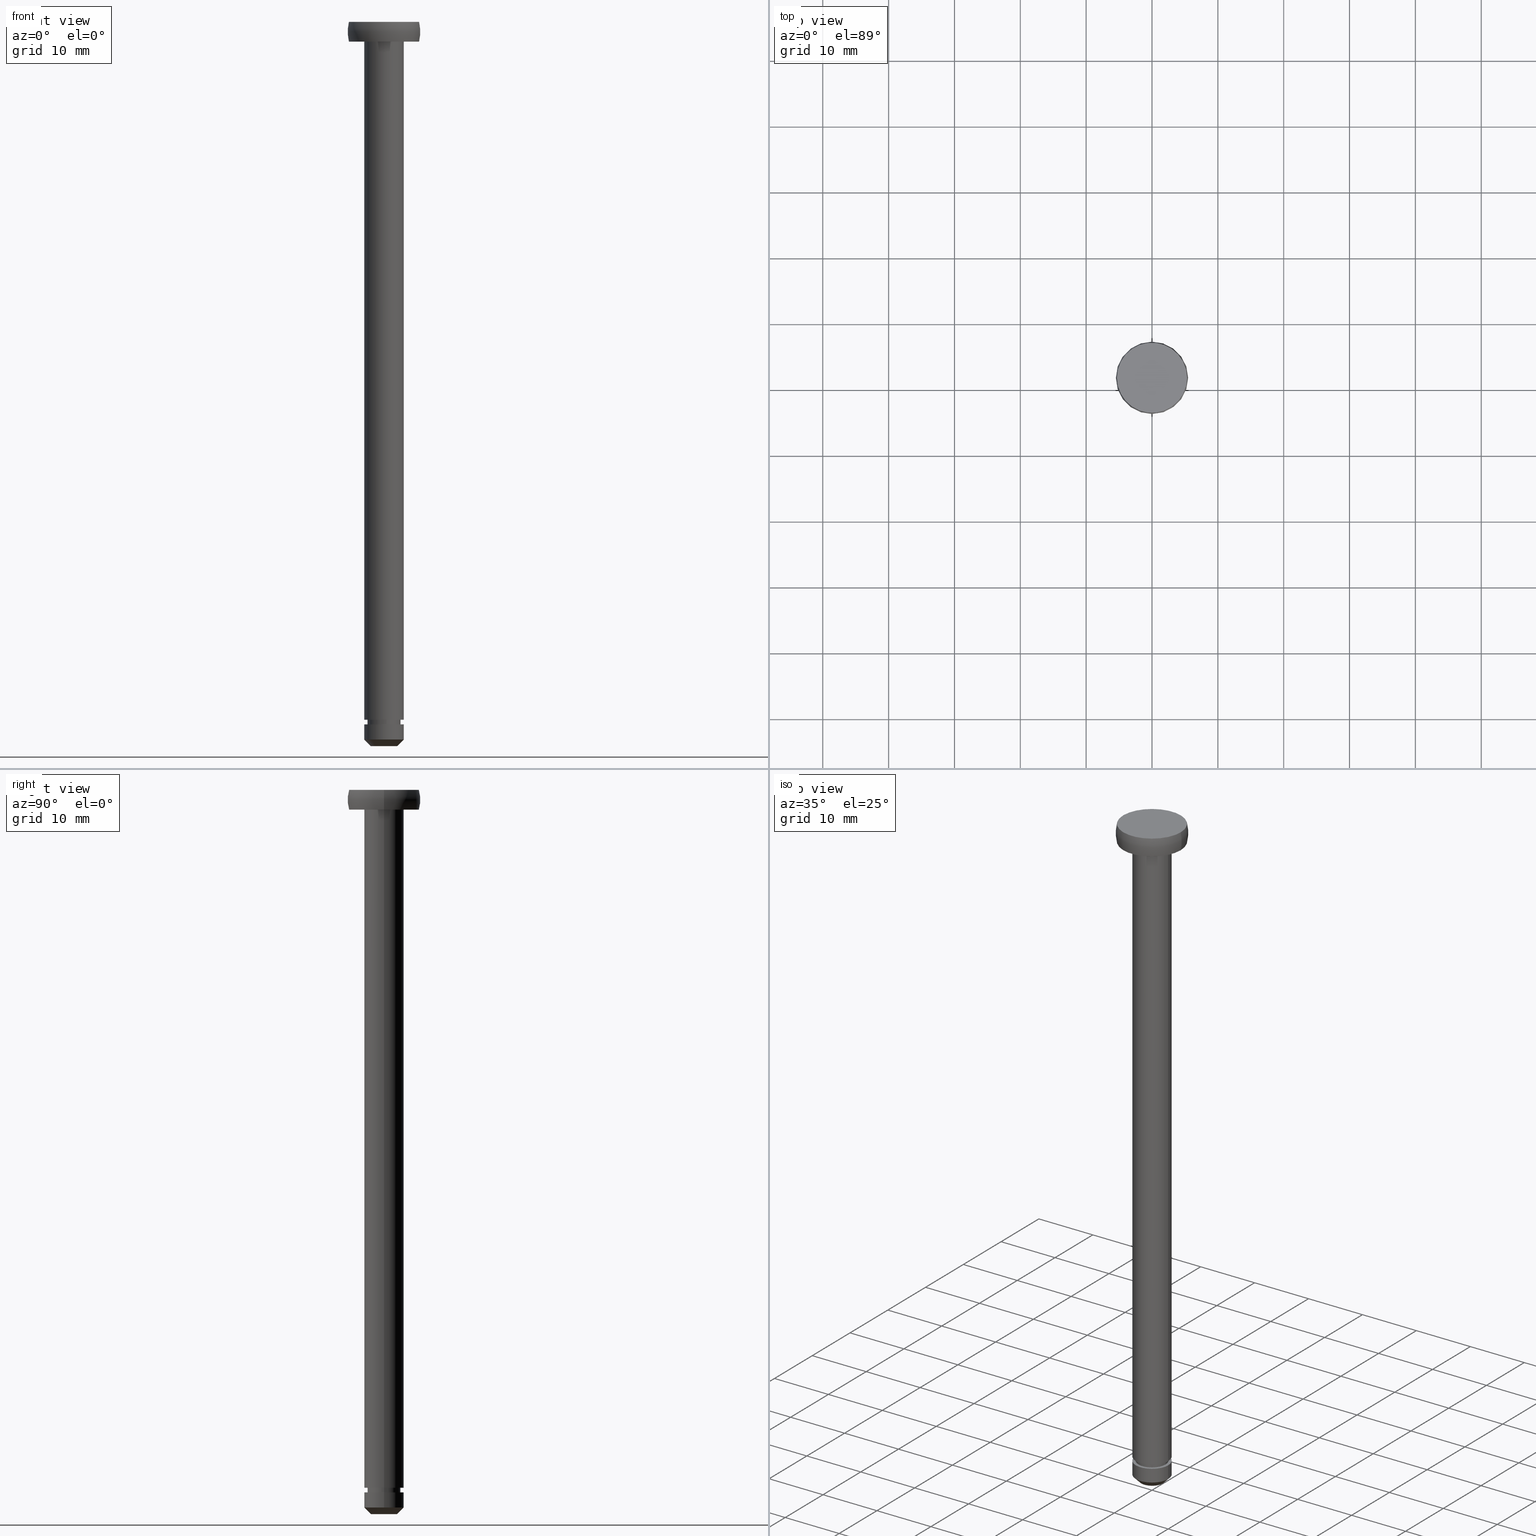
[diagram: canonical four-view strip — front | top / right | iso, engineering-drawing reading convention]
A machine part, canonical four-view strip (front | top / right | iso — engineering-drawing reading convention). The complete STEP part file that produces these views, byte-faithful:
ISO-10303-21;
HEADER;
FILE_DESCRIPTION (( 'STEP AP214' ),
    '1' );
FILE_NAME ('TH_121_6_107.STEP',
    '2016-08-24T01:56:41',
    ( '' ),
    ( '' ),
    'SwSTEP 2.0',
    'SolidWorks 2015',
    '' );
FILE_SCHEMA (( 'AUTOMOTIVE_DESIGN' ));
ENDSEC;

DATA;
#1 = CARTESIAN_POINT ( 'NONE',  ( 0.0000000000000000000, 0.0000000000000000000, -109.0000000180433900 ) ) ;
#2 = AXIS2_PLACEMENT_3D ( 'NONE', #25, #239, #35 ) ;
#3 = APPLICATION_CONTEXT ( 'automotive_design' ) ;
#4 = SHAPE_DEFINITION_REPRESENTATION ( #451, #245 ) ;
#5 = CIRCLE ( 'NONE', #444, 6.642766791230086700 ) ;
#6 = TOROIDAL_SURFACE ( 'NONE', #439, -1.142766791230102100, 6.642766791230087600 ) ;
#7 = DIRECTION ( 'NONE',  ( 1.000000000000000000, 0.0000000000000000000, 0.0000000000000000000 ) ) ;
#8 = ORIENTED_EDGE ( 'NONE', *, *, #219, .T. ) ;
#9 = EDGE_CURVE ( 'NONE', #442, #414, #404, .T. ) ;
#10 = ADVANCED_FACE ( 'NONE', ( #445 ), #446, .T. ) ;
#11 = COLOUR_RGB ( '',0.7921568627450980000, 0.8196078431372548800, 0.9333333333333333500 ) ;
#12 = CARTESIAN_POINT ( 'NONE',  ( 0.0000000000000000000, 0.0000000000000000000, -106.7000000180434000 ) ) ;
#13 = UNCERTAINTY_MEASURE_WITH_UNIT (LENGTH_MEASURE( 1.000000000000000100E-005 ), #193, 'distance_accuracy_value', 'NONE');
#14 = DIRECTION ( 'NONE',  ( -1.000000000000000000, 0.0000000000000000000, 0.0000000000000000000 ) ) ;
#15 = ORIENTED_EDGE ( 'NONE', *, *, #153, .T. ) ;
#16 = DIRECTION ( 'NONE',  ( -1.000000000000000000, 0.0000000000000000000, 0.0000000000000000000 ) ) ;
#17 = FACE_BOUND ( 'NONE', #151, .T. ) ;
#18 =( GEOMETRIC_REPRESENTATION_CONTEXT ( 3 ) GLOBAL_UNCERTAINTY_ASSIGNED_CONTEXT ( ( #13 ) ) GLOBAL_UNIT_ASSIGNED_CONTEXT ( ( #193, #410, #361 ) ) REPRESENTATION_CONTEXT ( 'NONE', 'WORKASPACE' ) );
#19 = ORIENTED_EDGE ( 'NONE', *, *, #58, .T. ) ;
#20 = CARTESIAN_POINT ( 'NONE',  ( 5.328427118366799500, 6.525441214997859000E-016, -6.132507696099412100E-014 ) ) ;
#21 = AXIS2_PLACEMENT_3D ( 'NONE', #1, #349, #382 ) ;
#22 = EDGE_CURVE ( 'NONE', #217, #47, #104, .T. ) ;
#23 = ORIENTED_EDGE ( 'NONE', *, *, #396, .T. ) ;
#24 = CIRCLE ( 'NONE', #134, 3.000000000000000000 ) ;
#25 = CARTESIAN_POINT ( 'NONE',  ( 0.0000000000000000000, 0.0000000000000000000, -6.132507950209293800E-014 ) ) ;
#26 = EDGE_CURVE ( 'NONE', #56, #163, #304, .T. ) ;
#27 = VERTEX_POINT ( 'NONE', #20 ) ;
#28 = CARTESIAN_POINT ( 'NONE',  ( 3.000000000000000900, 0.0000000000000000000, -109.0000000180433900 ) ) ;
#29 = LINE ( 'NONE', #154, #391 ) ;
#30 = DIRECTION ( 'NONE',  ( 0.0000000000000000000, 0.0000000000000000000, -1.000000000000000000 ) ) ;
#31 = AXIS2_PLACEMENT_3D ( 'NONE', #171, #212, #393 ) ;
#32 = PRODUCT_DEFINITION_CONTEXT ( 'detailed design', #69, 'design' ) ;
#33 = EDGE_CURVE ( 'NONE', #27, #350, #208, .T. ) ;
#34 = VECTOR ( 'NONE', #148, 1000.000000000000000 ) ;
#35 = DIRECTION ( 'NONE',  ( -1.000000000000000000, 0.0000000000000000000, 0.0000000000000000000 ) ) ;
#36 = APPLICATION_PROTOCOL_DEFINITION ( 'draft international standard', 'automotive_design', 1998, #113 ) ;
#37 = ORIENTED_EDGE ( 'NONE', *, *, #230, .T. ) ;
#38 = ORIENTED_EDGE ( 'NONE', *, *, #72, .F. ) ;
#39 = CARTESIAN_POINT ( 'NONE',  ( 0.0000000000000000000, 0.0000000000000000000, -106.7000000180434000 ) ) ;
#40 = CARTESIAN_POINT ( 'NONE',  ( 0.0000000000000000000, 0.0000000000000000000, 0.0000000000000000000 ) ) ;
#41 = EDGE_CURVE ( 'NONE', #264, #242, #71, .T. ) ;
#42 = CYLINDRICAL_SURFACE ( 'NONE', #246, 3.000000000000000400 ) ;
#43 = DIRECTION ( 'NONE',  ( 1.000000000000000000, 0.0000000000000000000, 0.0000000000000000000 ) ) ;
#44 = PRODUCT_DEFINITION_SHAPE ( 'NONE', 'NONE',  #469 ) ;
#45 = AXIS2_PLACEMENT_3D ( 'NONE', #88, #229, #7 ) ;
#46 = AXIS2_PLACEMENT_3D ( 'NONE', #218, #133, #460 ) ;
#47 = VERTEX_POINT ( 'NONE', #362 ) ;
#48 = ADVANCED_FACE ( 'NONE', ( #265, #165 ), #458, .T. ) ;
#49 = VERTEX_POINT ( 'NONE', #213 ) ;
#50 = VECTOR ( 'NONE', #123, 1000.000000000000000 ) ;
#51 = AXIS2_PLACEMENT_3D ( 'NONE', #346, #183, #175 ) ;
#52 = DIRECTION ( 'NONE',  ( 0.0000000000000000000, 0.0000000000000000000, -1.000000000000000000 ) ) ;
#53 = COLOUR_RGB ( '',0.7921568627450980000, 0.8196078431372548800, 0.9333333333333333500 ) ;
#54 = EDGE_CURVE ( 'NONE', #240, #243, #359, .T. ) ;
#55 = ORIENTED_EDGE ( 'NONE', *, *, #136, .T. ) ;
#56 = VERTEX_POINT ( 'NONE', #179 ) ;
#57 = DIRECTION ( 'NONE',  ( 0.0000000000000000000, 0.0000000000000000000, -1.000000000000000000 ) ) ;
#58 = EDGE_CURVE ( 'NONE', #459, #457, #260, .T. ) ;
#59 = CARTESIAN_POINT ( 'NONE',  ( -5.328427118366800400, 0.0000000000000000000, -3.000000018043550200 ) ) ;
#60 = EDGE_LOOP ( 'NONE', ( #206, #159, #312, #38 ) ) ;
#61 = DIRECTION ( 'NONE',  ( -1.000000000000000000, 0.0000000000000000000, -0.0000000000000000000 ) ) ;
#62 = SHAPE_REPRESENTATION ( 'shaft', ( #65 ), #18 ) ;
#63 = PRESENTATION_STYLE_ASSIGNMENT (( #356 ) ) ;
#64 = DIRECTION ( 'NONE',  ( -1.000000000000000000, 0.0000000000000000000, 0.0000000000000000000 ) ) ;
#65 = AXIS2_PLACEMENT_3D ( 'NONE', #235, #190, #189 ) ;
#66 = CARTESIAN_POINT ( 'NONE',  ( -3.000000000000000000, 0.0000000000000000000, -106.7000000180434000 ) ) ;
#67 = CARTESIAN_POINT ( 'NONE',  ( 2.000000000000000000, 0.0000000000000000000, -110.0000000180435900 ) ) ;
#68 = ORIENTED_EDGE ( 'NONE', *, *, #266, .T. ) ;
#69 = APPLICATION_CONTEXT ( 'automotive_design' ) ;
#70 = AXIS2_PLACEMENT_3D ( 'NONE', #288, #52, #395 ) ;
#71 = CIRCLE ( 'NONE', #454, 5.328427118366800400 ) ;
#72 = EDGE_CURVE ( 'NONE', #442, #108, #343, .T. ) ;
#73 = CARTESIAN_POINT ( 'NONE',  ( 3.000000000000000400, 3.673940397442060400E-016, -6.132507950209293800E-014 ) ) ;
#74 = ORIENTED_EDGE ( 'NONE', *, *, #33, .T. ) ;
#75 = DIRECTION ( 'NONE',  ( -1.000000000000000000, 0.0000000000000000000, 0.0000000000000000000 ) ) ;
#76 = CYLINDRICAL_SURFACE ( 'NONE', #2, 2.500000000000000000 ) ;
#77 =( NAMED_UNIT ( * ) SI_UNIT ( $, .STERADIAN. ) SOLID_ANGLE_UNIT ( ) );
#78 = PRODUCT_CONTEXT ( 'NONE', #3, 'mechanical' ) ;
#79 = CIRCLE ( 'NONE', #21, 3.000000000000000900 ) ;
#80 = DIRECTION ( 'NONE',  ( -1.000000000000000000, -1.224646799147353200E-016, 0.0000000000000000000 ) ) ;
#81 = CIRCLE ( 'NONE', #224, 3.000000000000000000 ) ;
#82 = SHAPE_REPRESENTATION_RELATIONSHIP ( 'NONE' , 'NONE' ,  #62, #255 ) ;
#83 = CARTESIAN_POINT ( 'NONE',  ( 2.500000000000000000, 3.061616997868383100E-016, -106.0000000180433900 ) ) ;
#84 = AXIS2_PLACEMENT_3D ( 'NONE', #400, #180, #103 ) ;
#85 = ORIENTED_EDGE ( 'NONE', *, *, #463, .F. ) ;
#86 = EDGE_LOOP ( 'NONE', ( #125, #37, #435, #358 ) ) ;
#87 = ORIENTED_EDGE ( 'NONE', *, *, #100, .T. ) ;
#88 = CARTESIAN_POINT ( 'NONE',  ( 3.000000000000000000, 0.0000000000000000000, -106.7000000180434000 ) ) ;
#89 = ADVANCED_FACE ( 'NONE', ( #327 ), #378, .T. ) ;
#90 = ORIENTED_EDGE ( 'NONE', *, *, #54, .F. ) ;
#91 = CARTESIAN_POINT ( 'NONE',  ( 0.0000000000000000000, 0.0000000000000000000, -3.000000018043550200 ) ) ;
#92 = FILL_AREA_STYLE_COLOUR ( '', #11 ) ;
#93 = STYLED_ITEM ( 'NONE', ( #334 ), #255 ) ;
#94 = ORIENTED_EDGE ( 'NONE', *, *, #162, .F. ) ;
#95 = DIRECTION ( 'NONE',  ( -0.0000000000000000000, -0.0000000000000000000, 1.000000000000000000 ) ) ;
#96 = EDGE_LOOP ( 'NONE', ( #90, #210 ) ) ;
#97 = SURFACE_SIDE_STYLE ('',( #204 ) ) ;
#98 = AXIS2_PLACEMENT_3D ( 'NONE', #203, #253, #143 ) ;
#99 = CARTESIAN_POINT ( 'NONE',  ( 3.000000000000000000, 3.673940397442059900E-016, -106.0000000180433900 ) ) ;
#100 = EDGE_CURVE ( 'NONE', #243, #240, #24, .T. ) ;
#101 = VECTOR ( 'NONE', #109, 1000.000000000000100 ) ;
#102 = DIRECTION ( 'NONE',  ( 0.0000000000000000000, 0.0000000000000000000, -1.000000000000000000 ) ) ;
#103 = DIRECTION ( 'NONE',  ( -1.000000000000000000, 0.0000000000000000000, 0.0000000000000000000 ) ) ;
#104 = CIRCLE ( 'NONE', #380, 2.000000000000000000 ) ;
#105 = VERTEX_POINT ( 'NONE', #99 ) ;
#106 = CIRCLE ( 'NONE', #316, 6.642766791230087600 ) ;
#107 = AXIS2_PLACEMENT_3D ( 'NONE', #111, #95, #244 ) ;
#108 = VERTEX_POINT ( 'NONE', #418 ) ;
#109 = DIRECTION ( 'NONE',  ( 0.7071067811864788500, 0.0000000000000000000, 0.7071067811866163000 ) ) ;
#110 = VECTOR ( 'NONE', #102, 1000.000000000000000 ) ;
#111 = CARTESIAN_POINT ( 'NONE',  ( 0.0000000000000000000, 0.0000000000000000000, -110.0000000180435900 ) ) ;
#112 = DIRECTION ( 'NONE',  ( -1.000000000000000000, 0.0000000000000000000, 0.0000000000000000000 ) ) ;
#113 = APPLICATION_CONTEXT ( 'automotive_design' ) ;
#114 = ORIENTED_EDGE ( 'NONE', *, *, #22, .T. ) ;
#115 =( NAMED_UNIT ( * ) PLANE_ANGLE_UNIT ( ) SI_UNIT ( $, .RADIAN. ) );
#116 = PLANE ( 'NONE',  #45 ) ;
#117 = ORIENTED_EDGE ( 'NONE', *, *, #41, .F. ) ;
#118 = CYLINDRICAL_SURFACE ( 'NONE', #366, 3.000000000000000000 ) ;
#119 = PRODUCT ( 'TH_121_6_107', 'TH_121_6_107', '', ( #78 ) ) ;
#120 = PRESENTATION_LAYER_ASSIGNMENT (  '', '', ( #93 ) ) ;
#121 = EDGE_LOOP ( 'NONE', ( #19, #357, #371, #156 ) ) ;
#122 = UNCERTAINTY_MEASURE_WITH_UNIT (LENGTH_MEASURE( 1.000000000000000100E-005 ), #298, 'distance_accuracy_value', 'NONE');
#123 = DIRECTION ( 'NONE',  ( 0.0000000000000000000, 0.0000000000000000000, -1.000000000000000000 ) ) ;
#124 = PRODUCT_DEFINITION_FORMATION_WITH_SPECIFIED_SOURCE ( 'ANY', '', #452, .NOT_KNOWN. ) ;
#125 = ORIENTED_EDGE ( 'NONE', *, *, #130, .F. ) ;
#126 = ADVANCED_FACE ( 'NONE', ( #303 ), #209, .T. ) ;
#127 = CARTESIAN_POINT ( 'NONE',  ( -3.000000000000000000, 0.0000000000000000000, -3.000000018043495100 ) ) ;
#128 = ORIENTED_EDGE ( 'NONE', *, *, #463, .T. ) ;
#129 = CARTESIAN_POINT ( 'NONE',  ( 3.000000000000000000, 3.673940397442059900E-016, -6.132507950209293800E-014 ) ) ;
#130 = EDGE_CURVE ( 'NONE', #457, #49, #176, .T. ) ;
#131 = VECTOR ( 'NONE', #295, 1000.000000000000000 ) ;
#132 = DIRECTION ( 'NONE',  ( 0.0000000000000000000, 0.0000000000000000000, -1.000000000000000000 ) ) ;
#133 = DIRECTION ( 'NONE',  ( 0.0000000000000000000, 0.0000000000000000000, -1.000000000000000000 ) ) ;
#134 = AXIS2_PLACEMENT_3D ( 'NONE', #39, #280, #169 ) ;
#135 = PLANE ( 'NONE',  #299 ) ;
#136 = EDGE_CURVE ( 'NONE', #49, #468, #214, .T. ) ;
#137 = DIRECTION ( 'NONE',  ( 0.0000000000000000000, 0.0000000000000000000, -1.000000000000000000 ) ) ;
#138 = ORIENTED_EDGE ( 'NONE', *, *, #311, .F. ) ;
#139 = EDGE_LOOP ( 'NONE', ( #381, #55 ) ) ;
#140 = DIRECTION ( 'NONE',  ( -1.000000000000000000, 0.0000000000000000000, 0.0000000000000000000 ) ) ;
#141 = VECTOR ( 'NONE', #216, 1000.000000000000000 ) ;
#142 = CIRCLE ( 'NONE', #221, 2.000000000000000000 ) ;
#143 = DIRECTION ( 'NONE',  ( 1.000000000000000000, 0.0000000000000000000, 0.0000000000000000000 ) ) ;
#144 = DIRECTION ( 'NONE',  ( 0.0000000000000000000, 0.0000000000000000000, -1.000000000000000000 ) ) ;
#145 = MECHANICAL_DESIGN_GEOMETRIC_PRESENTATION_REPRESENTATION (  '', ( #93 ), #161 ) ;
#146 = CARTESIAN_POINT ( 'NONE',  ( -3.000000000000000000, 0.0000000000000000000, -6.132507950209293800E-014 ) ) ;
#147 = CARTESIAN_POINT ( 'NONE',  ( 0.0000000000000000000, 0.0000000000000000000, -6.132507950209293800E-014 ) ) ;
#148 = DIRECTION ( 'NONE',  ( 0.0000000000000000000, 0.0000000000000000000, -1.000000000000000000 ) ) ;
#149 = ORIENTED_EDGE ( 'NONE', *, *, #54, .T. ) ;
#150 = EDGE_LOOP ( 'NONE', ( #412, #194 ) ) ;
#151 = EDGE_LOOP ( 'NONE', ( #252, #370 ) ) ;
#152 = FILL_AREA_STYLE_COLOUR ( '', #53 ) ;
#153 = EDGE_CURVE ( 'NONE', #105, #108, #81, .T. ) ;
#154 = CARTESIAN_POINT ( 'NONE',  ( -2.500000000000000000, 0.0000000000000000000, -6.132507950209293800E-014 ) ) ;
#155 = CARTESIAN_POINT ( 'NONE',  ( 0.0000000000000000000, 0.0000000000000000000, -1.500000009021820000 ) ) ;
#156 = ORIENTED_EDGE ( 'NONE', *, *, #388, .F. ) ;
#157 = ADVANCED_FACE ( 'NONE', ( #384 ), #135, .T. ) ;
#158 = EDGE_CURVE ( 'NONE', #108, #105, #270, .T. ) ;
#159 = ORIENTED_EDGE ( 'NONE', *, *, #339, .T. ) ;
#160 = FILL_AREA_STYLE ('',( #152 ) ) ;
#161 =( GEOMETRIC_REPRESENTATION_CONTEXT ( 3 ) GLOBAL_UNCERTAINTY_ASSIGNED_CONTEXT ( ( #313 ) ) GLOBAL_UNIT_ASSIGNED_CONTEXT ( ( #262, #115, #399 ) ) REPRESENTATION_CONTEXT ( 'NONE', 'WORKASPACE' ) );
#162 = EDGE_CURVE ( 'NONE', #217, #163, #287, .T. ) ;
#163 = VERTEX_POINT ( 'NONE', #28 ) ;
#164 = FILL_AREA_STYLE ('',( #92 ) ) ;
#165 = FACE_BOUND ( 'NONE', #150, .T. ) ;
#166 = UNCERTAINTY_MEASURE_WITH_UNIT (LENGTH_MEASURE( 1.000000000000000100E-005 ), #215, 'distance_accuracy_value', 'NONE');
#167 = EDGE_LOOP ( 'NONE', ( #178, #15 ) ) ;
#168 = DIRECTION ( 'NONE',  ( 0.0000000000000000000, 0.0000000000000000000, -1.000000000000000000 ) ) ;
#169 = DIRECTION ( 'NONE',  ( -1.000000000000000000, 0.0000000000000000000, 0.0000000000000000000 ) ) ;
#170 = AXIS2_PLACEMENT_3D ( 'NONE', #91, #222, #14 ) ;
#171 = CARTESIAN_POINT ( 'NONE',  ( 0.0000000000000000000, 0.0000000000000000000, -106.7000000180434000 ) ) ;
#172 = FACE_OUTER_BOUND ( 'NONE', #401, .T. ) ;
#173 = CARTESIAN_POINT ( 'NONE',  ( 1.142766791230102100, 0.0000000000000000000, -1.500000009021820000 ) ) ;
#174 = VECTOR ( 'NONE', #365, 1000.000000000000100 ) ;
#175 = DIRECTION ( 'NONE',  ( -1.000000000000000000, 0.0000000000000000000, -0.0000000000000000000 ) ) ;
#176 = LINE ( 'NONE', #455, #110 ) ;
#177 = AXIS2_PLACEMENT_3D ( 'NONE', #320, #199, #290 ) ;
#178 = ORIENTED_EDGE ( 'NONE', *, *, #158, .T. ) ;
#179 = CARTESIAN_POINT ( 'NONE',  ( -3.000000000000000900, 3.673940397442060900E-016, -109.0000000180433900 ) ) ;
#180 = DIRECTION ( 'NONE',  ( 0.0000000000000000000, 0.0000000000000000000, -1.000000000000000000 ) ) ;
#181 = FACE_OUTER_BOUND ( 'NONE', #301, .T. ) ;
#182 = DIRECTION ( 'NONE',  ( 0.0000000000000000000, 0.0000000000000000000, -1.000000000000000000 ) ) ;
#183 = DIRECTION ( 'NONE',  ( 0.0000000000000000000, 0.0000000000000000000, -1.000000000000000000 ) ) ;
#184 = DIRECTION ( 'NONE',  ( -1.000000000000000000, 0.0000000000000000000, 0.0000000000000000000 ) ) ;
#185 = MANIFOLD_SOLID_BREP ( '��]1', #275 ) ;
#186 = FACE_OUTER_BOUND ( 'NONE', #121, .T. ) ;
#187 = CARTESIAN_POINT ( 'NONE',  ( 2.500000000000000000, 0.0000000000000000000, -106.0000000180433900 ) ) ;
#188 = FACE_BOUND ( 'NONE', #139, .T. ) ;
#189 = DIRECTION ( 'NONE',  ( 1.000000000000000000, 0.0000000000000000000, 0.0000000000000000000 ) ) ;
#190 = DIRECTION ( 'NONE',  ( 0.0000000000000000000, 0.0000000000000000000, 1.000000000000000000 ) ) ;
#191 = ADVANCED_FACE ( 'NONE', ( #186 ), #76, .T. ) ;
#192 = EDGE_CURVE ( 'NONE', #350, #242, #5, .T. ) ;
#193 =( LENGTH_UNIT ( ) NAMED_UNIT ( * ) SI_UNIT ( .MILLI., .METRE. ) );
#194 = ORIENTED_EDGE ( 'NONE', *, *, #219, .F. ) ;
#195 = AXIS2_PLACEMENT_3D ( 'NONE', #286, #168, #184 ) ;
#196 = CARTESIAN_POINT ( 'NONE',  ( -1.142766791230102100, -1.399485693051835900E-016, -1.500000009021820000 ) ) ;
#197 = PRODUCT_DEFINITION_SHAPE ( 'NONE', 'NONE',  #333 ) ;
#198 = FACE_OUTER_BOUND ( 'NONE', #297, .T. ) ;
#199 = DIRECTION ( 'NONE',  ( 0.0000000000000000000, 0.0000000000000000000, -1.000000000000000000 ) ) ;
#200 = ORIENTED_EDGE ( 'NONE', *, *, #26, .T. ) ;
#201 = AXIS2_PLACEMENT_3D ( 'NONE', #284, #465, #61 ) ;
#202 = DIRECTION ( 'NONE',  ( 0.0000000000000000000, 0.0000000000000000000, -1.000000000000000000 ) ) ;
#203 = CARTESIAN_POINT ( 'NONE',  ( 0.0000000000000000000, 0.0000000000000000000, -110.0000000180435900 ) ) ;
#204 = SURFACE_STYLE_FILL_AREA ( #164 ) ;
#205 = CARTESIAN_POINT ( 'NONE',  ( 3.000000000000000000, 3.673940397442060400E-016, -106.7000000180434000 ) ) ;
#206 = ORIENTED_EDGE ( 'NONE', *, *, #9, .T. ) ;
#207 = DIRECTION ( 'NONE',  ( 0.0000000000000000000, 0.0000000000000000000, -1.000000000000000000 ) ) ;
#208 = CIRCLE ( 'NONE', #429, 5.328427118366799500 ) ;
#209 = PLANE ( 'NONE',  #201 ) ;
#210 = ORIENTED_EDGE ( 'NONE', *, *, #100, .F. ) ;
#211 = LINE ( 'NONE', #73, #50 ) ;
#212 = DIRECTION ( 'NONE',  ( 0.0000000000000000000, 0.0000000000000000000, -1.000000000000000000 ) ) ;
#213 = CARTESIAN_POINT ( 'NONE',  ( 2.500000000000000000, 3.061616997868383100E-016, -106.7000000180434000 ) ) ;
#214 = CIRCLE ( 'NONE', #177, 2.500000000000000000 ) ;
#215 =( LENGTH_UNIT ( ) NAMED_UNIT ( * ) SI_UNIT ( .MILLI., .METRE. ) );
#216 = DIRECTION ( 'NONE',  ( 0.0000000000000000000, 0.0000000000000000000, -1.000000000000000000 ) ) ;
#217 = VERTEX_POINT ( 'NONE', #67 ) ;
#218 = CARTESIAN_POINT ( 'NONE',  ( 0.0000000000000000000, 0.0000000000000000000, -106.0000000180433900 ) ) ;
#219 = EDGE_CURVE ( 'NONE', #414, #442, #389, .T. ) ;
#220 = LINE ( 'NONE', #129, #131 ) ;
#221 = AXIS2_PLACEMENT_3D ( 'NONE', #450, #132, #447 ) ;
#222 = DIRECTION ( 'NONE',  ( 0.0000000000000000000, 0.0000000000000000000, -1.000000000000000000 ) ) ;
#223 = DIRECTION ( 'NONE',  ( 0.0000000000000000000, 0.0000000000000000000, -1.000000000000000000 ) ) ;
#224 = AXIS2_PLACEMENT_3D ( 'NONE', #424, #385, #466 ) ;
#225 = CARTESIAN_POINT ( 'NONE',  ( 0.0000000000000000000, 0.0000000000000000000, 0.0000000000000000000 ) ) ;
#226 = ORIENTED_EDGE ( 'NONE', *, *, #236, .T. ) ;
#227 = ORIENTED_EDGE ( 'NONE', *, *, #342, .T. ) ;
#228 = ADVANCED_FACE ( 'NONE', ( #314 ), #376, .T. ) ;
#229 = DIRECTION ( 'NONE',  ( 0.0000000000000000000, -0.0000000000000000000, 1.000000000000000000 ) ) ;
#230 = EDGE_CURVE ( 'NONE', #457, #459, #369, .T. ) ;
#231 = ORIENTED_EDGE ( 'NONE', *, *, #387, .F. ) ;
#232 = APPLICATION_PROTOCOL_DEFINITION ( 'draft international standard', 'automotive_design', 1998, #3 ) ;
#233 = TOROIDAL_SURFACE ( 'NONE', #294, -1.142766791230102100, 6.642766791230087600 ) ;
#234 = DIRECTION ( 'NONE',  ( 0.0000000000000000000, 0.0000000000000000000, -1.000000000000000000 ) ) ;
#235 = CARTESIAN_POINT ( 'NONE',  ( 0.0000000000000000000, 0.0000000000000000000, 0.0000000000000000000 ) ) ;
#236 = EDGE_CURVE ( 'NONE', #163, #56, #79, .T. ) ;
#237 = CARTESIAN_POINT ( 'NONE',  ( 0.0000000000000000000, 0.0000000000000000000, -109.0000000180433900 ) ) ;
#238 = AXIS2_PLACEMENT_3D ( 'NONE', #363, #345, #443 ) ;
#239 = DIRECTION ( 'NONE',  ( 0.0000000000000000000, 0.0000000000000000000, -1.000000000000000000 ) ) ;
#240 = VERTEX_POINT ( 'NONE', #66 ) ;
#241 = DIRECTION ( 'NONE',  ( 0.0000000000000000000, 0.0000000000000000000, -1.000000000000000000 ) ) ;
#242 = VERTEX_POINT ( 'NONE', #59 ) ;
#243 = VERTEX_POINT ( 'NONE', #205 ) ;
#244 = DIRECTION ( 'NONE',  ( 1.000000000000000000, 0.0000000000000000000, 0.0000000000000000000 ) ) ;
#245 = SHAPE_REPRESENTATION ( 'TH_121_6_107', ( #309, #261 ), #283 ) ;
#246 = AXIS2_PLACEMENT_3D ( 'NONE', #147, #57, #467 ) ;
#247 = CARTESIAN_POINT ( 'NONE',  ( 0.0000000000000000000, 0.0000000000000000000, -3.000000018043550200 ) ) ;
#248 = ADVANCED_FACE ( 'NONE', ( #340 ), #368, .T. ) ;
#249 = CARTESIAN_POINT ( 'NONE',  ( 0.0000000000000000000, 0.0000000000000000000, -110.0000000180435900 ) ) ;
#250 = APPLICATION_CONTEXT ( 'automotive_design' ) ;
#251 = EDGE_LOOP ( 'NONE', ( #423, #321 ) ) ;
#252 = ORIENTED_EDGE ( 'NONE', *, *, #58, .F. ) ;
#253 = DIRECTION ( 'NONE',  ( -0.0000000000000000000, -0.0000000000000000000, 1.000000000000000000 ) ) ;
#254 =( REPRESENTATION_RELATIONSHIP ('NONE','NONE', #245, #62 ) REPRESENTATION_RELATIONSHIP_WITH_TRANSFORMATION ( #278 )SHAPE_REPRESENTATION_RELATIONSHIP( ) );
#255 = ADVANCED_BREP_SHAPE_REPRESENTATION ( '', ( #185, #65 ), #18 ) ;
#256 = CARTESIAN_POINT ( 'NONE',  ( 0.0000000000000000000, 0.0000000000000000000, -6.132507950209293800E-014 ) ) ;
#257 = ORIENTED_EDGE ( 'NONE', *, *, #22, .F. ) ;
#258 = DIRECTION ( 'NONE',  ( -1.000000000000000000, 0.0000000000000000000, 0.0000000000000000000 ) ) ;
#259 = DIRECTION ( 'NONE',  ( -1.000000000000000000, 0.0000000000000000000, 0.0000000000000000000 ) ) ;
#260 = CIRCLE ( 'NONE', #84, 2.500000000000000000 ) ;
#261 = AXIS2_PLACEMENT_3D ( 'NONE', #40, #344, #324 ) ;
#262 =( LENGTH_UNIT ( ) NAMED_UNIT ( * ) SI_UNIT ( .MILLI., .METRE. ) );
#263 = EDGE_LOOP ( 'NONE', ( #85, #257, #273, #226 ) ) ;
#264 = VERTEX_POINT ( 'NONE', #355 ) ;
#265 = FACE_OUTER_BOUND ( 'NONE', #251, .T. ) ;
#266 = EDGE_CURVE ( 'NONE', #240, #56, #440, .T. ) ;
#267 = ADVANCED_FACE ( 'NONE', ( #181 ), #428, .T. ) ;
#268 = AXIS2_PLACEMENT_3D ( 'NONE', #291, #269, #258 ) ;
#269 = DIRECTION ( 'NONE',  ( 0.0000000000000000000, 0.0000000000000000000, -1.000000000000000000 ) ) ;
#270 = CIRCLE ( 'NONE', #274, 3.000000000000000000 ) ;
#271 = LINE ( 'NONE', #416, #174 ) ;
#272 = CARTESIAN_POINT ( 'NONE',  ( 0.0000000000000000000, 0.0000000000000000000, -3.000000018043495100 ) ) ;
#273 = ORIENTED_EDGE ( 'NONE', *, *, #162, .T. ) ;
#274 = AXIS2_PLACEMENT_3D ( 'NONE', #422, #144, #140 ) ;
#275 = CLOSED_SHELL ( 'NONE', ( #10, #191, #300, #89, #413, #337, #157, #126, #248, #267, #448, #228, #394, #375, #48 ) ) ;
#276 = DIRECTION ( 'NONE',  ( 0.0000000000000000000, 0.0000000000000000000, -1.000000000000000000 ) ) ;
#277 = CARTESIAN_POINT ( 'NONE',  ( 2.000000000000000000, 0.0000000000000000000, -110.0000000180435900 ) ) ;
#278 = ITEM_DEFINED_TRANSFORMATION ( 'NONE', 'NONE', #261,  #65 ) ;
#279 = DIRECTION ( 'NONE',  ( 0.0000000000000000000, 0.0000000000000000000, -1.000000000000000000 ) ) ;
#280 = DIRECTION ( 'NONE',  ( 0.0000000000000000000, 0.0000000000000000000, -1.000000000000000000 ) ) ;
#281 = DIRECTION ( 'NONE',  ( -1.000000000000000000, 0.0000000000000000000, 0.0000000000000000000 ) ) ;
#282 = FACE_OUTER_BOUND ( 'NONE', #96, .T. ) ;
#283 =( GEOMETRIC_REPRESENTATION_CONTEXT ( 3 ) GLOBAL_UNCERTAINTY_ASSIGNED_CONTEXT ( ( #122 ) ) GLOBAL_UNIT_ASSIGNED_CONTEXT ( ( #298, #293, #289 ) ) REPRESENTATION_CONTEXT ( 'NONE', 'WORKASPACE' ) );
#284 = CARTESIAN_POINT ( 'NONE',  ( 0.0000000000000000000, 0.0000000000000000000, -110.0000000180435900 ) ) ;
#285 = ORIENTED_EDGE ( 'NONE', *, *, #387, .T. ) ;
#286 = CARTESIAN_POINT ( 'NONE',  ( 0.0000000000000000000, 0.0000000000000000000, -6.132507950209293800E-014 ) ) ;
#287 = LINE ( 'NONE', #277, #101 ) ;
#288 = CARTESIAN_POINT ( 'NONE',  ( 0.0000000000000000000, 0.0000000000000000000, -6.132507950209293800E-014 ) ) ;
#289 =( NAMED_UNIT ( * ) SI_UNIT ( $, .STERADIAN. ) SOLID_ANGLE_UNIT ( ) );
#290 = DIRECTION ( 'NONE',  ( -1.000000000000000000, 0.0000000000000000000, 0.0000000000000000000 ) ) ;
#291 = CARTESIAN_POINT ( 'NONE',  ( 0.0000000000000000000, 0.0000000000000000000, -6.132507696099412100E-014 ) ) ;
#292 = ORIENTED_EDGE ( 'NONE', *, *, #339, .F. ) ;
#293 =( NAMED_UNIT ( * ) PLANE_ANGLE_UNIT ( ) SI_UNIT ( $, .RADIAN. ) );
#294 = AXIS2_PLACEMENT_3D ( 'NONE', #402, #322, #436 ) ;
#295 = DIRECTION ( 'NONE',  ( 0.0000000000000000000, 0.0000000000000000000, -1.000000000000000000 ) ) ;
#296 = APPLICATION_PROTOCOL_DEFINITION ( 'draft international standard', 'automotive_design', 1998, #69 ) ;
#297 = EDGE_LOOP ( 'NONE', ( #227, #23, #138, #348 ) ) ;
#298 =( LENGTH_UNIT ( ) NAMED_UNIT ( * ) SI_UNIT ( .MILLI., .METRE. ) );
#299 = AXIS2_PLACEMENT_3D ( 'NONE', #318, #461, #420 ) ;
#300 = ADVANCED_FACE ( 'NONE', ( #172 ), #42, .T. ) ;
#301 = EDGE_LOOP ( 'NONE', ( #231, #87, #68, #326 ) ) ;
#302 = EDGE_CURVE ( 'NONE', #47, #217, #142, .T. ) ;
#303 = FACE_OUTER_BOUND ( 'NONE', #425, .T. ) ;
#304 = CIRCLE ( 'NONE', #354, 3.000000000000000900 ) ;
#305 = EDGE_LOOP ( 'NONE', ( #421, #449 ) ) ;
#306 = DIRECTION ( 'NONE',  ( -1.000000000000000000, 0.0000000000000000000, 0.0000000000000000000 ) ) ;
#307 = FACE_OUTER_BOUND ( 'NONE', #167, .T. ) ;
#308 = DIRECTION ( 'NONE',  ( -1.000000000000000000, 0.0000000000000000000, 0.0000000000000000000 ) ) ;
#309 = AXIS2_PLACEMENT_3D ( 'NONE', #225, #377, #43 ) ;
#310 = ORIENTED_EDGE ( 'NONE', *, *, #26, .F. ) ;
#311 = EDGE_CURVE ( 'NONE', #242, #264, #329, .T. ) ;
#312 = ORIENTED_EDGE ( 'NONE', *, *, #158, .F. ) ;
#313 = UNCERTAINTY_MEASURE_WITH_UNIT (LENGTH_MEASURE( 1.000000000000000100E-005 ), #262, 'distance_accuracy_value', 'NONE');
#314 = FACE_OUTER_BOUND ( 'NONE', #86, .T. ) ;
#315 = CIRCLE ( 'NONE', #268, 5.328427118366799500 ) ;
#316 = AXIS2_PLACEMENT_3D ( 'NONE', #196, #434, #80 ) ;
#317 = DIRECTION ( 'NONE',  ( -0.0000000000000000000, -1.000000000000000000, -0.0000000000000000000 ) ) ;
#318 = CARTESIAN_POINT ( 'NONE',  ( 5.328427118366799500, 0.0000000000000000000, -6.132507823154353000E-014 ) ) ;
#319 = STYLED_ITEM ( 'NONE', ( #63 ), #185 ) ;
#320 = CARTESIAN_POINT ( 'NONE',  ( 0.0000000000000000000, 0.0000000000000000000, -106.7000000180434000 ) ) ;
#321 = ORIENTED_EDGE ( 'NONE', *, *, #41, .T. ) ;
#322 = DIRECTION ( 'NONE',  ( 0.0000000000000000000, 0.0000000000000000000, -1.000000000000000000 ) ) ;
#323 = ORIENTED_EDGE ( 'NONE', *, *, #192, .T. ) ;
#324 = DIRECTION ( 'NONE',  ( 1.000000000000000000, 0.0000000000000000000, 0.0000000000000000000 ) ) ;
#325 = APPLICATION_PROTOCOL_DEFINITION ( 'draft international standard', 'automotive_design', 1998, #250 ) ;
#326 = ORIENTED_EDGE ( 'NONE', *, *, #236, .F. ) ;
#327 = FACE_OUTER_BOUND ( 'NONE', #335, .T. ) ;
#328 = PRODUCT_DEFINITION_CONTEXT ( 'detailed design', #113, 'design' ) ;
#329 = CIRCLE ( 'NONE', #170, 5.328427118366800400 ) ;
#330 = PLANE ( 'NONE',  #392 ) ;
#331 = AXIS2_PLACEMENT_3D ( 'NONE', #272, #276, #64 ) ;
#332 = DIRECTION ( 'NONE',  ( -1.000000000000000000, 0.0000000000000000000, 0.0000000000000000000 ) ) ;
#333 = PRODUCT_DEFINITION ( 'UNKNOWN', '', #124, #328 ) ;
#334 = PRESENTATION_STYLE_ASSIGNMENT (( #403 ) ) ;
#335 = EDGE_LOOP ( 'NONE', ( #405, #128, #200, #94 ) ) ;
#336 = ORIENTED_EDGE ( 'NONE', *, *, #266, .F. ) ;
#337 = ADVANCED_FACE ( 'NONE', ( #415 ), #233, .T. ) ;
#338 = CARTESIAN_POINT ( 'NONE',  ( -2.500000000000000000, 0.0000000000000000000, -106.0000000180433900 ) ) ;
#339 = EDGE_CURVE ( 'NONE', #414, #105, #220, .T. ) ;
#340 = FACE_OUTER_BOUND ( 'NONE', #263, .T. ) ;
#341 = EDGE_LOOP ( 'NONE', ( #397, #74, #323, #117 ) ) ;
#342 = EDGE_CURVE ( 'NONE', #350, #27, #315, .T. ) ;
#343 = LINE ( 'NONE', #146, #141 ) ;
#344 = DIRECTION ( 'NONE',  ( 0.0000000000000000000, 0.0000000000000000000, 1.000000000000000000 ) ) ;
#345 = DIRECTION ( 'NONE',  ( 0.0000000000000000000, 0.0000000000000000000, 1.000000000000000000 ) ) ;
#346 = CARTESIAN_POINT ( 'NONE',  ( 3.000000000000000000, 0.0000000000000000000, -3.000000018043522700 ) ) ;
#347 = PRESENTATION_LAYER_ASSIGNMENT (  '', '', ( #319 ) ) ;
#348 = ORIENTED_EDGE ( 'NONE', *, *, #192, .F. ) ;
#349 = DIRECTION ( 'NONE',  ( 0.0000000000000000000, 0.0000000000000000000, -1.000000000000000000 ) ) ;
#350 = VERTEX_POINT ( 'NONE', #408 ) ;
#351 =( NAMED_UNIT ( * ) PLANE_ANGLE_UNIT ( ) SI_UNIT ( $, .RADIAN. ) );
#352 = CARTESIAN_POINT ( 'NONE',  ( -3.000000000000000400, 0.0000000000000000000, -6.132507950209293800E-014 ) ) ;
#353 = CARTESIAN_POINT ( 'NONE',  ( 0.0000000000000000000, 0.0000000000000000000, -6.132507696099412100E-014 ) ) ;
#354 = AXIS2_PLACEMENT_3D ( 'NONE', #237, #279, #259 ) ;
#355 = CARTESIAN_POINT ( 'NONE',  ( 5.328427118366800400, 6.525441214997859000E-016, -3.000000018043550200 ) ) ;
#356 = SURFACE_STYLE_USAGE ( .BOTH. , #97 ) ;
#357 = ORIENTED_EDGE ( 'NONE', *, *, #130, .T. ) ;
#358 = ORIENTED_EDGE ( 'NONE', *, *, #136, .F. ) ;
#359 = CIRCLE ( 'NONE', #31, 3.000000000000000000 ) ;
#360 = DIRECTION ( 'NONE',  ( -1.000000000000000000, 0.0000000000000000000, -0.0000000000000000000 ) ) ;
#361 =( NAMED_UNIT ( * ) SI_UNIT ( $, .STERADIAN. ) SOLID_ANGLE_UNIT ( ) );
#362 = CARTESIAN_POINT ( 'NONE',  ( -2.000000000000000000, 3.061616997868383600E-016, -110.0000000180435900 ) ) ;
#363 = CARTESIAN_POINT ( 'NONE',  ( 0.0000000000000000000, 0.0000000000000000000, 0.0000000000000000000 ) ) ;
#364 = CARTESIAN_POINT ( 'NONE',  ( 3.000000000000000000, 3.673940397442059900E-016, -3.000000018043495100 ) ) ;
#365 = DIRECTION ( 'NONE',  ( -0.7071067811864788500, 8.659560562354091000E-017, 0.7071067811866163000 ) ) ;
#366 = AXIS2_PLACEMENT_3D ( 'NONE', #367, #441, #306 ) ;
#367 = CARTESIAN_POINT ( 'NONE',  ( 0.0000000000000000000, 0.0000000000000000000, -6.132507950209293800E-014 ) ) ;
#368 = CONICAL_SURFACE ( 'NONE', #98, 2.000000000000000000, 0.7853981633973511300 ) ;
#369 = CIRCLE ( 'NONE', #46, 2.500000000000000000 ) ;
#370 = ORIENTED_EDGE ( 'NONE', *, *, #230, .F. ) ;
#371 = ORIENTED_EDGE ( 'NONE', *, *, #426, .F. ) ;
#372 = MECHANICAL_DESIGN_GEOMETRIC_PRESENTATION_REPRESENTATION (  '', ( #319 ), #398 ) ;
#373 = PRODUCT_RELATED_PRODUCT_CATEGORY ( 'part', '', ( #452 ) ) ;
#374 = SHAPE_DEFINITION_REPRESENTATION ( #197, #62 ) ;
#375 = ADVANCED_FACE ( 'NONE', ( #407 ), #118, .T. ) ;
#376 = CYLINDRICAL_SURFACE ( 'NONE', #70, 2.500000000000000000 ) ;
#377 = DIRECTION ( 'NONE',  ( 0.0000000000000000000, 0.0000000000000000000, 1.000000000000000000 ) ) ;
#378 = CONICAL_SURFACE ( 'NONE', #107, 2.000000000000000000, 0.7853981633973511300 ) ;
#379 = CIRCLE ( 'NONE', #417, 2.500000000000000000 ) ;
#380 = AXIS2_PLACEMENT_3D ( 'NONE', #249, #464, #281 ) ;
#381 = ORIENTED_EDGE ( 'NONE', *, *, #426, .T. ) ;
#382 = DIRECTION ( 'NONE',  ( -1.000000000000000000, 0.0000000000000000000, 0.0000000000000000000 ) ) ;
#383 = PRODUCT_DEFINITION ( 'UNKNOWN', '', #411, #32 ) ;
#384 = FACE_OUTER_BOUND ( 'NONE', #305, .T. ) ;
#385 = DIRECTION ( 'NONE',  ( 0.0000000000000000000, 0.0000000000000000000, -1.000000000000000000 ) ) ;
#386 = CARTESIAN_POINT ( 'NONE',  ( 0.0000000000000000000, 0.0000000000000000000, -3.000000018043495100 ) ) ;
#387 = EDGE_CURVE ( 'NONE', #243, #163, #211, .T. ) ;
#388 = EDGE_CURVE ( 'NONE', #459, #468, #29, .T. ) ;
#389 = CIRCLE ( 'NONE', #419, 3.000000000000000000 ) ;
#390 = ORIENTED_EDGE ( 'NONE', *, *, #153, .F. ) ;
#391 = VECTOR ( 'NONE', #223, 1000.000000000000000 ) ;
#392 = AXIS2_PLACEMENT_3D ( 'NONE', #187, #182, #360 ) ;
#393 = DIRECTION ( 'NONE',  ( -1.000000000000000000, 0.0000000000000000000, 0.0000000000000000000 ) ) ;
#394 = ADVANCED_FACE ( 'NONE', ( #307, #17 ), #330, .T. ) ;
#395 = DIRECTION ( 'NONE',  ( -1.000000000000000000, 0.0000000000000000000, 0.0000000000000000000 ) ) ;
#396 = EDGE_CURVE ( 'NONE', #27, #264, #106, .T. ) ;
#397 = ORIENTED_EDGE ( 'NONE', *, *, #396, .F. ) ;
#398 =( GEOMETRIC_REPRESENTATION_CONTEXT ( 3 ) GLOBAL_UNCERTAINTY_ASSIGNED_CONTEXT ( ( #166 ) ) GLOBAL_UNIT_ASSIGNED_CONTEXT ( ( #215, #351, #77 ) ) REPRESENTATION_CONTEXT ( 'NONE', 'WORKASPACE' ) );
#399 =( NAMED_UNIT ( * ) SI_UNIT ( $, .STERADIAN. ) SOLID_ANGLE_UNIT ( ) );
#400 = CARTESIAN_POINT ( 'NONE',  ( 0.0000000000000000000, 0.0000000000000000000, -106.0000000180433900 ) ) ;
#401 = EDGE_LOOP ( 'NONE', ( #149, #285, #310, #336 ) ) ;
#402 = CARTESIAN_POINT ( 'NONE',  ( 0.0000000000000000000, 0.0000000000000000000, -1.500000009021820000 ) ) ;
#403 = SURFACE_STYLE_USAGE ( .BOTH. , #437 ) ;
#404 = CIRCLE ( 'NONE', #331, 3.000000000000000000 ) ;
#405 = ORIENTED_EDGE ( 'NONE', *, *, #302, .F. ) ;
#406 = PRODUCT_CONTEXT ( 'NONE', #250, 'mechanical' ) ;
#407 = FACE_OUTER_BOUND ( 'NONE', #456, .T. ) ;
#408 = CARTESIAN_POINT ( 'NONE',  ( -5.328427118366799500, 0.0000000000000000000, -6.132507696099412100E-014 ) ) ;
#409 = AXIS2_PLACEMENT_3D ( 'NONE', #256, #137, #75 ) ;
#410 =( NAMED_UNIT ( * ) PLANE_ANGLE_UNIT ( ) SI_UNIT ( $, .RADIAN. ) );
#411 = PRODUCT_DEFINITION_FORMATION_WITH_SPECIFIED_SOURCE ( 'ANY', '', #119, .NOT_KNOWN. ) ;
#412 = ORIENTED_EDGE ( 'NONE', *, *, #9, .F. ) ;
#413 = ADVANCED_FACE ( 'NONE', ( #198 ), #6, .T. ) ;
#414 = VERTEX_POINT ( 'NONE', #364 ) ;
#415 = FACE_OUTER_BOUND ( 'NONE', #341, .T. ) ;
#416 = CARTESIAN_POINT ( 'NONE',  ( -2.000000000000000000, 2.449293598294706400E-016, -110.0000000180435900 ) ) ;
#417 = AXIS2_PLACEMENT_3D ( 'NONE', #12, #453, #16 ) ;
#418 = CARTESIAN_POINT ( 'NONE',  ( -3.000000000000000000, 0.0000000000000000000, -106.0000000180433900 ) ) ;
#419 = AXIS2_PLACEMENT_3D ( 'NONE', #386, #30, #112 ) ;
#420 = DIRECTION ( 'NONE',  ( 1.000000000000000000, 0.0000000000000000000, 0.0000000000000000000 ) ) ;
#421 = ORIENTED_EDGE ( 'NONE', *, *, #342, .F. ) ;
#422 = CARTESIAN_POINT ( 'NONE',  ( 0.0000000000000000000, 0.0000000000000000000, -106.0000000180433900 ) ) ;
#423 = ORIENTED_EDGE ( 'NONE', *, *, #311, .T. ) ;
#424 = CARTESIAN_POINT ( 'NONE',  ( 0.0000000000000000000, 0.0000000000000000000, -106.0000000180433900 ) ) ;
#425 = EDGE_LOOP ( 'NONE', ( #114, #433 ) ) ;
#426 = EDGE_CURVE ( 'NONE', #468, #49, #379, .T. ) ;
#427 = DIRECTION ( 'NONE',  ( -1.000000000000000000, 0.0000000000000000000, 0.0000000000000000000 ) ) ;
#428 = CYLINDRICAL_SURFACE ( 'NONE', #195, 3.000000000000000400 ) ;
#429 = AXIS2_PLACEMENT_3D ( 'NONE', #353, #202, #308 ) ;
#430 = SURFACE_STYLE_FILL_AREA ( #160 ) ;
#431 = PRODUCT_RELATED_PRODUCT_CATEGORY ( 'part', '', ( #119 ) ) ;
#432 = ORIENTED_EDGE ( 'NONE', *, *, #72, .T. ) ;
#433 = ORIENTED_EDGE ( 'NONE', *, *, #302, .T. ) ;
#434 = DIRECTION ( 'NONE',  ( -1.224646799147353200E-016, 1.000000000000000000, 0.0000000000000000000 ) ) ;
#435 = ORIENTED_EDGE ( 'NONE', *, *, #388, .T. ) ;
#436 = DIRECTION ( 'NONE',  ( -1.000000000000000000, 0.0000000000000000000, 0.0000000000000000000 ) ) ;
#437 = SURFACE_SIDE_STYLE ('',( #430 ) ) ;
#438 = CARTESIAN_POINT ( 'NONE',  ( -2.500000000000000000, 0.0000000000000000000, -106.7000000180434000 ) ) ;
#439 = AXIS2_PLACEMENT_3D ( 'NONE', #155, #234, #332 ) ;
#440 = LINE ( 'NONE', #352, #34 ) ;
#441 = DIRECTION ( 'NONE',  ( 0.0000000000000000000, 0.0000000000000000000, -1.000000000000000000 ) ) ;
#442 = VERTEX_POINT ( 'NONE', #127 ) ;
#443 = DIRECTION ( 'NONE',  ( 1.000000000000000000, 0.0000000000000000000, 0.0000000000000000000 ) ) ;
#444 = AXIS2_PLACEMENT_3D ( 'NONE', #173, #317, #207 ) ;
#445 = FACE_OUTER_BOUND ( 'NONE', #60, .T. ) ;
#446 = CYLINDRICAL_SURFACE ( 'NONE', #409, 3.000000000000000000 ) ;
#447 = DIRECTION ( 'NONE',  ( -1.000000000000000000, 0.0000000000000000000, 0.0000000000000000000 ) ) ;
#448 = ADVANCED_FACE ( 'NONE', ( #188, #282 ), #116, .T. ) ;
#449 = ORIENTED_EDGE ( 'NONE', *, *, #33, .F. ) ;
#450 = CARTESIAN_POINT ( 'NONE',  ( 0.0000000000000000000, 0.0000000000000000000, -110.0000000180435900 ) ) ;
#451 = PRODUCT_DEFINITION_SHAPE ( 'NONE', 'NONE',  #383 ) ;
#452 = PRODUCT ( 'shaft', 'shaft', '', ( #406 ) ) ;
#453 = DIRECTION ( 'NONE',  ( 0.0000000000000000000, 0.0000000000000000000, -1.000000000000000000 ) ) ;
#454 = AXIS2_PLACEMENT_3D ( 'NONE', #247, #241, #427 ) ;
#455 = CARTESIAN_POINT ( 'NONE',  ( 2.500000000000000000, 3.061616997868383100E-016, -6.132507950209293800E-014 ) ) ;
#456 = EDGE_LOOP ( 'NONE', ( #292, #8, #432, #390 ) ) ;
#457 = VERTEX_POINT ( 'NONE', #83 ) ;
#458 = PLANE ( 'NONE',  #51 ) ;
#459 = VERTEX_POINT ( 'NONE', #338 ) ;
#460 = DIRECTION ( 'NONE',  ( -1.000000000000000000, 0.0000000000000000000, 0.0000000000000000000 ) ) ;
#461 = DIRECTION ( 'NONE',  ( 0.0000000000000000000, -0.0000000000000000000, 1.000000000000000000 ) ) ;
#462 = CONTEXT_DEPENDENT_SHAPE_REPRESENTATION ( #254, #44 ) ;
#463 = EDGE_CURVE ( 'NONE', #47, #56, #271, .T. ) ;
#464 = DIRECTION ( 'NONE',  ( 0.0000000000000000000, 0.0000000000000000000, -1.000000000000000000 ) ) ;
#465 = DIRECTION ( 'NONE',  ( 0.0000000000000000000, 0.0000000000000000000, -1.000000000000000000 ) ) ;
#466 = DIRECTION ( 'NONE',  ( -1.000000000000000000, 0.0000000000000000000, 0.0000000000000000000 ) ) ;
#467 = DIRECTION ( 'NONE',  ( -1.000000000000000000, 0.0000000000000000000, 0.0000000000000000000 ) ) ;
#468 = VERTEX_POINT ( 'NONE', #438 ) ;
#469 = NEXT_ASSEMBLY_USAGE_OCCURRENCE ( 'NAUO1', ' ', ' ', #383, #333, $ ) ;
ENDSEC;
END-ISO-10303-21;
